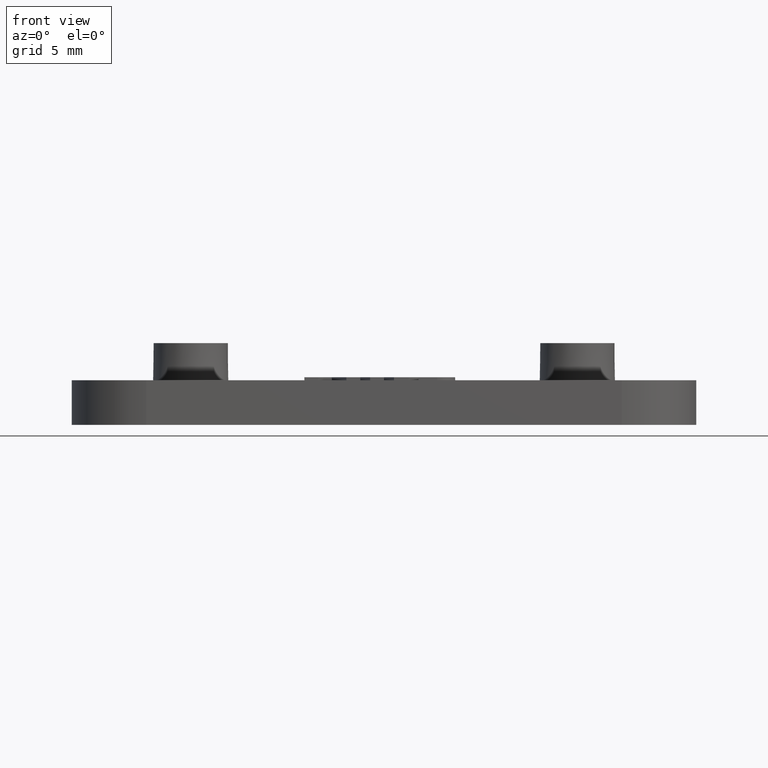
[diagram: clean part render]
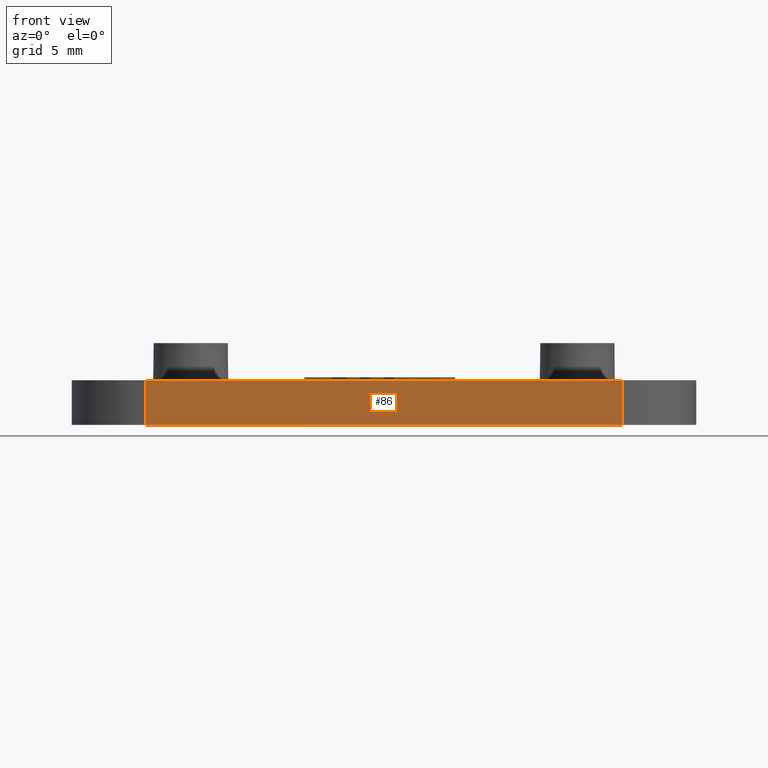
[diagram: same view with one face highlighted and labeled with its STEP entity id]
A machine part, front view. The second image highlights one B-rep face of the part: STEP entity #86.
In plain terms, the highlighted planar face has unit normal (0, 1, -0).
Its self-contained STEP definition (entity closure, byte-faithful):
#86 = ADVANCED_FACE( '', ( #168 ), #169, .F. );
#168 = FACE_OUTER_BOUND( '', #301, .T. );
#169 = PLANE( '', #302 );
#301 = EDGE_LOOP( '', ( #530, #531, #532, #533 ) );
#302 = AXIS2_PLACEMENT_3D( '', #534, #535, #536 );
#530 = ORIENTED_EDGE( '', *, *, #932, .F. );
#531 = ORIENTED_EDGE( '', *, *, #898, .T. );
#532 = ORIENTED_EDGE( '', *, *, #952, .T. );
#533 = ORIENTED_EDGE( '', *, *, #946, .F. );
#534 = CARTESIAN_POINT( '', ( 33.5000000000000, -12.5000000000000, -2.00513027405827E-014 ) );
#535 = DIRECTION( '', ( 9.86076131526265E-032, 1.00000000000000, -6.12303176911189E-017 ) );
#536 = DIRECTION( '', ( 1.00000000000000, -9.86076131526265E-032, 6.03777548009827E-048 ) );
#898 = EDGE_CURVE( '', #1063, #1061, #1064, .T. );
#932 = EDGE_CURVE( '', #1063, #1124, #1126, .T. );
#946 = EDGE_CURVE( '', #1124, #1152, #1153, .T. );
#952 = EDGE_CURVE( '', #1061, #1152, #1161, .T. );
#1061 = VERTEX_POINT( '', #1322 );
#1063 = VERTEX_POINT( '', #1324 );
#1064 = LINE( '', #1325, #1326 );
#1124 = VERTEX_POINT( '', #1413 );
#1126 = LINE( '', #1415, #1416 );
#1152 = VERTEX_POINT( '', #1454 );
#1153 = LINE( '', #1455, #1456 );
#1161 = LINE( '', #1467, #1468 );
#1322 = CARTESIAN_POINT( '', ( -16.0000000000000, -12.5000000000000, 2.99999999999998 ) );
#1324 = CARTESIAN_POINT( '', ( 16.0000000000000, -12.5000000000000, 2.99999999999998 ) );
#1325 = CARTESIAN_POINT( '', ( 33.5000000000000, -12.5000000000000, 2.99999999999998 ) );
#1326 = VECTOR( '', #1680, 1000.00000000000 );
#1413 = CARTESIAN_POINT( '', ( 16.0000000000000, -12.5000000000000, -2.00513027405827E-014 ) );
#1415 = CARTESIAN_POINT( '', ( 16.0000000000000, -12.5000000000000, 64.3690937321107 ) );
#1416 = VECTOR( '', #1726, 1000.00000000000 );
#1454 = CARTESIAN_POINT( '', ( -16.0000000000000, -12.5000000000000, -2.69901966444899E-014 ) );
#1455 = CARTESIAN_POINT( '', ( 33.5000000000000, -12.5000000000000, -2.00513027405827E-014 ) );
#1456 = VECTOR( '', #1742, 1000.00000000000 );
#1467 = CARTESIAN_POINT( '', ( -16.0000000000000, -12.5000000000000, 77.4433291477311 ) );
#1468 = VECTOR( '', #1752, 1000.00000000000 );
#1680 = DIRECTION( '', ( -1.00000000000000, 0.000000000000000, 0.000000000000000 ) );
#1726 = DIRECTION( '', ( 1.60751816480226E-016, -1.81794180051289E-016, -1.00000000000000 ) );
#1742 = DIRECTION( '', ( -1.00000000000000, 0.000000000000000, 0.000000000000000 ) );
#1752 = DIRECTION( '', ( 1.60751816480226E-016, -1.81794180051289E-016, -1.00000000000000 ) );